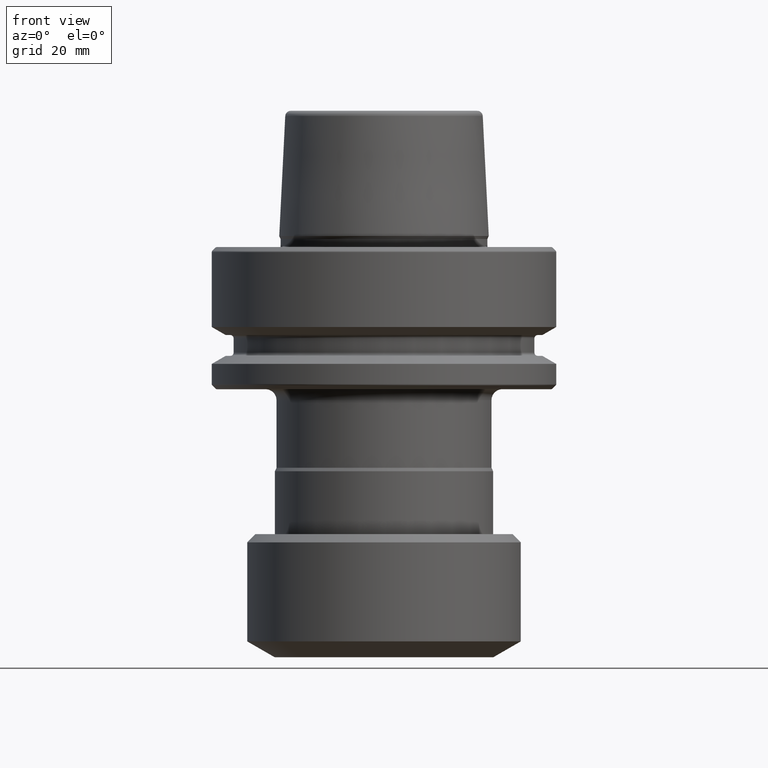
[diagram: clean part render]
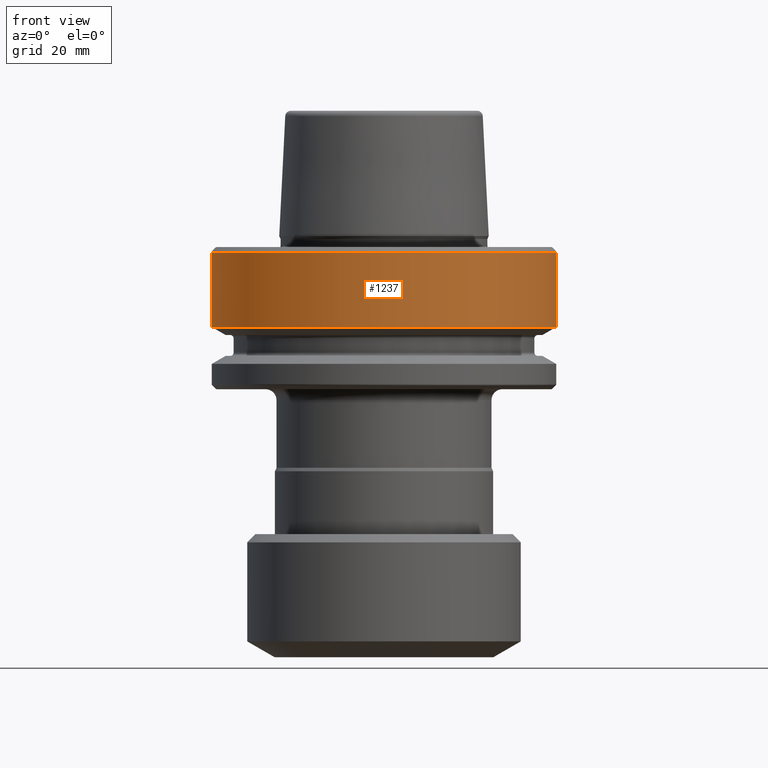
[diagram: same view with one face highlighted and labeled with its STEP entity id]
A machine part, front view. The second image highlights one B-rep face of the part: STEP entity #1237.
In plain terms, the highlighted cylindrical surface (partial cylindrical patch) has radius 31.5 mm, axis along (-0, -0, 1).
Its self-contained STEP definition (entity closure, byte-faithful):
#33 = EDGE_CURVE ( 'NONE', #1096, #1196, #1449, .T. ) ;
#70 = CARTESIAN_POINT ( 'NONE',  ( -31.50000000000000000, 3.857637417314162700E-015, 28.73056821819219300 ) ) ;
#104 = CYLINDRICAL_SURFACE ( 'NONE', #664, 31.50000000000000000 ) ;
#144 = DIRECTION ( 'NONE',  ( -0.0000000000000000000, -0.0000000000000000000, 1.000000000000000000 ) ) ;
#153 = DIRECTION ( 'NONE',  ( -0.0000000000000000000, -0.0000000000000000000, 1.000000000000000000 ) ) ;
#206 = CARTESIAN_POINT ( 'NONE',  ( 31.50000000000000000, 0.0000000000000000000, -19.62250092524069700 ) ) ;
#256 = CARTESIAN_POINT ( 'NONE',  ( 0.0000000000000000000, 0.0000000000000000000, 28.73056821819219300 ) ) ;
#292 = EDGE_CURVE ( 'NONE', #1196, #1579, #1577, .T. ) ;
#344 = CIRCLE ( 'NONE', #1483, 31.50000000000000000 ) ;
#427 = ORIENTED_EDGE ( 'NONE', *, *, #292, .F. ) ;
#444 = EDGE_CURVE ( 'NONE', #1552, #1579, #1006, .T. ) ;
#447 = ORIENTED_EDGE ( 'NONE', *, *, #1390, .T. ) ;
#479 = FACE_OUTER_BOUND ( 'NONE', #1590, .T. ) ;
#586 = CARTESIAN_POINT ( 'NONE',  ( 31.50000000000000000, 0.0000000000000000000, -5.965685424949240800 ) ) ;
#655 = CARTESIAN_POINT ( 'NONE',  ( 0.0000000000000000000, 0.0000000000000000000, -19.62250092524069700 ) ) ;
#664 = AXIS2_PLACEMENT_3D ( 'NONE', #256, #1118, #868 ) ;
#665 = VECTOR ( 'NONE', #153, 1000.000000000000000 ) ;
#723 = CARTESIAN_POINT ( 'NONE',  ( 0.0000000000000000000, 0.0000000000000000000, -5.965685424949240800 ) ) ;
#724 = VECTOR ( 'NONE', #144, 1000.000000000000000 ) ;
#782 = DIRECTION ( 'NONE',  ( 1.000000000000000000, 0.0000000000000000000, 0.0000000000000000000 ) ) ;
#845 = DIRECTION ( 'NONE',  ( 1.000000000000000000, 0.0000000000000000000, 0.0000000000000000000 ) ) ;
#848 = ORIENTED_EDGE ( 'NONE', *, *, #33, .F. ) ;
#868 = DIRECTION ( 'NONE',  ( 1.000000000000000000, 0.0000000000000000000, 0.0000000000000000000 ) ) ;
#882 = CARTESIAN_POINT ( 'NONE',  ( 31.50000000000000000, 0.0000000000000000000, 28.73056821819219300 ) ) ;
#1006 = LINE ( 'NONE', #882, #724 ) ;
#1081 = CARTESIAN_POINT ( 'NONE',  ( -31.50000000000000000, 3.857637417314162700E-015, -19.62250092524069700 ) ) ;
#1096 = VERTEX_POINT ( 'NONE', #1081 ) ;
#1112 = CARTESIAN_POINT ( 'NONE',  ( -31.50000000000000000, 3.857637417314162700E-015, -5.965685424949240800 ) ) ;
#1118 = DIRECTION ( 'NONE',  ( -0.0000000000000000000, -0.0000000000000000000, 1.000000000000000000 ) ) ;
#1196 = VERTEX_POINT ( 'NONE', #1112 ) ;
#1237 = ADVANCED_FACE ( 'NONE', ( #479 ), #104, .T. ) ;
#1390 = EDGE_CURVE ( 'NONE', #1096, #1552, #344, .T. ) ;
#1449 = LINE ( 'NONE', #70, #665 ) ;
#1476 = AXIS2_PLACEMENT_3D ( 'NONE', #723, #1588, #845 ) ;
#1483 = AXIS2_PLACEMENT_3D ( 'NONE', #655, #1518, #782 ) ;
#1511 = ORIENTED_EDGE ( 'NONE', *, *, #444, .T. ) ;
#1518 = DIRECTION ( 'NONE',  ( -0.0000000000000000000, -0.0000000000000000000, 1.000000000000000000 ) ) ;
#1552 = VERTEX_POINT ( 'NONE', #206 ) ;
#1577 = CIRCLE ( 'NONE', #1476, 31.50000000000000000 ) ;
#1579 = VERTEX_POINT ( 'NONE', #586 ) ;
#1588 = DIRECTION ( 'NONE',  ( -0.0000000000000000000, -0.0000000000000000000, 1.000000000000000000 ) ) ;
#1590 = EDGE_LOOP ( 'NONE', ( #848, #447, #1511, #427 ) ) ;